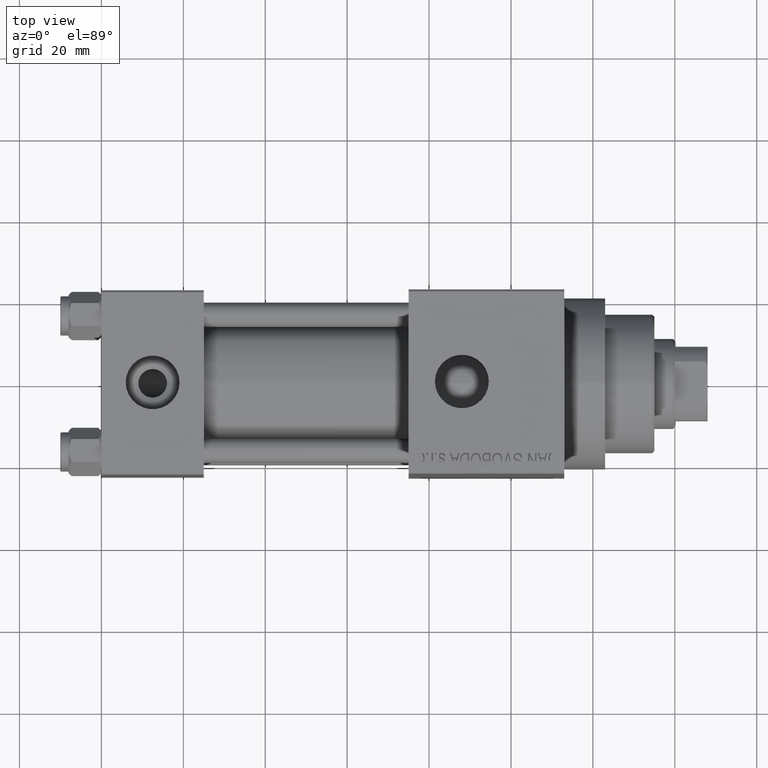
[diagram: clean part render]
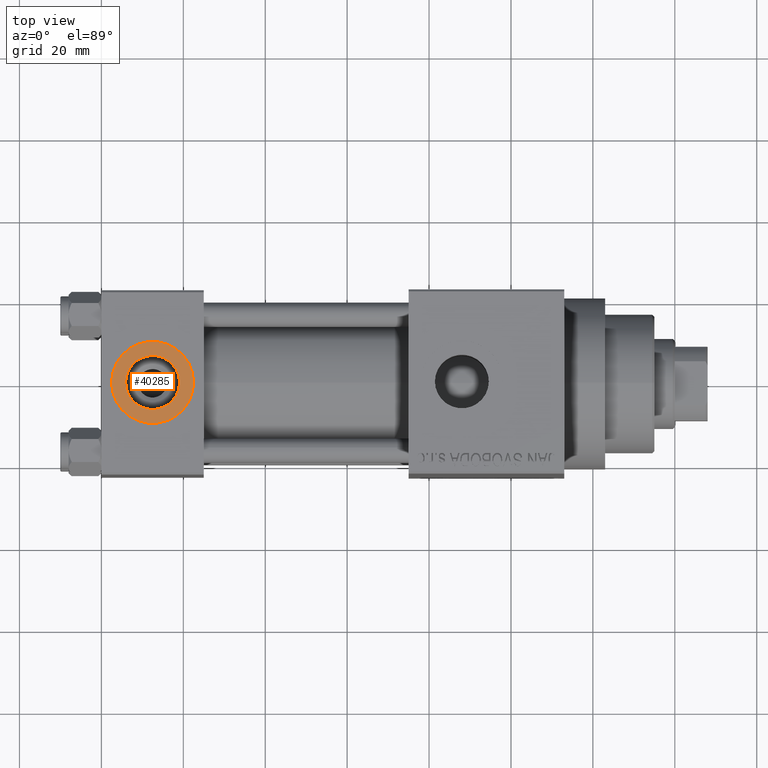
[diagram: same view with one face highlighted and labeled with its STEP entity id]
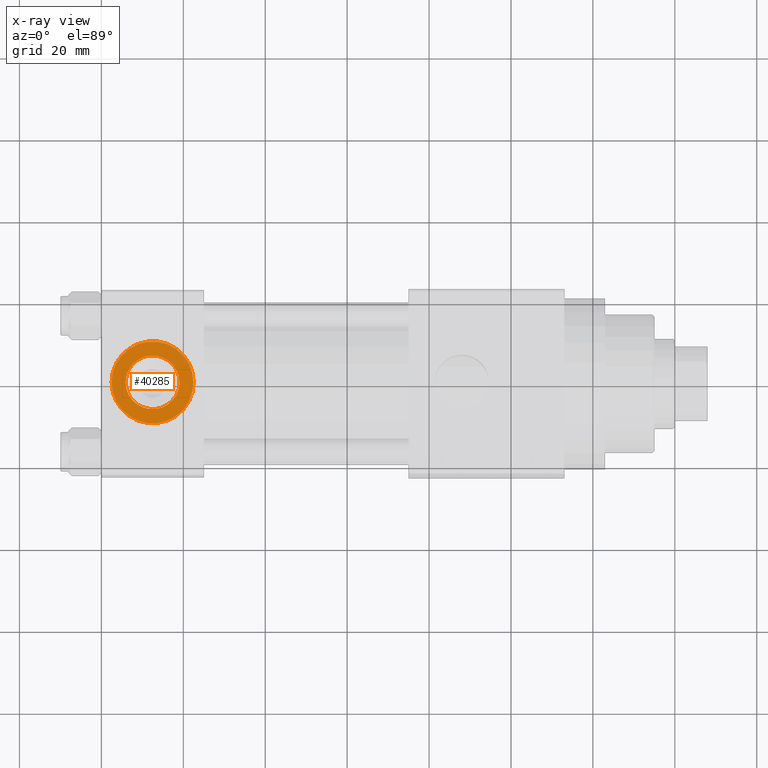
[diagram: x-ray of the same camera — body ghosted, the highlighted face saturated]
A machine part, top view. The second image highlights one B-rep face of the part: STEP entity #40285.
The next image is the same camera in x-ray: the body ghosted, the highlighted face saturated — about 0% of this face is hidden behind the body in this view.
In plain terms, the highlighted planar face has unit normal (0, 0, 1).
Its self-contained STEP definition (entity closure, byte-faithful):
#69 = CARTESIAN_POINT ( 'NONE',  ( 12.50000000000000000, -1.734723475976807094E-15, 22.30000000000000071 ) ) ;
#307 = AXIS2_PLACEMENT_3D ( 'NONE', #14742, #14052, #43171 ) ;
#3039 = DIRECTION ( 'NONE',  ( 1.000000000000000000, 0.000000000000000000, 0.000000000000000000 ) ) ;
#4204 = EDGE_CURVE ( 'NONE', #16653, #33208, #35362, .T. ) ;
#6408 = EDGE_CURVE ( 'NONE', #33208, #16653, #30695, .T. ) ;
#6685 = CARTESIAN_POINT ( 'NONE',  ( 5.920000000000002593, -9.289058821378490386E-16, 22.30000000000000071 ) ) ;
#7043 = CARTESIAN_POINT ( 'NONE',  ( 12.50000000000000000, -1.734723475976807094E-15, 22.30000000000000071 ) ) ;
#7850 = AXIS2_PLACEMENT_3D ( 'NONE', #17790, #35716, #3039 ) ;
#8886 = CARTESIAN_POINT ( 'NONE',  ( 22.50000000000000000, -1.734723475976807094E-15, 22.30000000000000071 ) ) ;
#9097 = ORIENTED_EDGE ( 'NONE', *, *, #35844, .T. ) ;
#11006 = AXIS2_PLACEMENT_3D ( 'NONE', #69, #21524, #43503 ) ;
#11388 = EDGE_LOOP ( 'NONE', ( #27694, #27226 ) ) ;
#14052 = DIRECTION ( 'NONE',  ( 0.000000000000000000, 0.000000000000000000, 1.000000000000000000 ) ) ;
#14742 = CARTESIAN_POINT ( 'NONE',  ( 12.50000000000000000, -1.734723475976807094E-15, 22.30000000000000071 ) ) ;
#16653 = VERTEX_POINT ( 'NONE', #46333 ) ;
#17790 = CARTESIAN_POINT ( 'NONE',  ( 12.50000000000000000, -1.734723475976807094E-15, 22.30000000000000071 ) ) ;
#21085 = CIRCLE ( 'NONE', #43964, 9.999999999999998224 ) ;
#21188 = DIRECTION ( 'NONE',  ( 0.000000000000000000, 0.000000000000000000, 1.000000000000000000 ) ) ;
#21524 = DIRECTION ( 'NONE',  ( 0.000000000000000000, 0.000000000000000000, 1.000000000000000000 ) ) ;
#22918 = VERTEX_POINT ( 'NONE', #8886 ) ;
#26394 = ORIENTED_EDGE ( 'NONE', *, *, #41058, .T. ) ;
#27226 = ORIENTED_EDGE ( 'NONE', *, *, #6408, .F. ) ;
#27694 = ORIENTED_EDGE ( 'NONE', *, *, #4204, .F. ) ;
#28281 = FACE_OUTER_BOUND ( 'NONE', #44110, .T. ) ;
#30075 = CIRCLE ( 'NONE', #11006, 9.999999999999998224 ) ;
#30695 = CIRCLE ( 'NONE', #7850, 6.579999999999999183 ) ;
#31222 = CARTESIAN_POINT ( 'NONE',  ( 12.50000000000000000, -1.734723475976807094E-15, 22.30000000000000071 ) ) ;
#31870 = FACE_BOUND ( 'NONE', #11388, .T. ) ;
#32566 = DIRECTION ( 'NONE',  ( 1.000000000000000000, 0.000000000000000000, -0.000000000000000000 ) ) ;
#33208 = VERTEX_POINT ( 'NONE', #6685 ) ;
#33983 = AXIS2_PLACEMENT_3D ( 'NONE', #7043, #36158, #32566 ) ;
#35362 = CIRCLE ( 'NONE', #307, 6.579999999999999183 ) ;
#35527 = DIRECTION ( 'NONE',  ( 1.000000000000000000, 0.000000000000000000, 0.000000000000000000 ) ) ;
#35716 = DIRECTION ( 'NONE',  ( 0.000000000000000000, 0.000000000000000000, 1.000000000000000000 ) ) ;
#35844 = EDGE_CURVE ( 'NONE', #22918, #44741, #30075, .T. ) ;
#36158 = DIRECTION ( 'NONE',  ( 0.000000000000000000, 0.000000000000000000, 1.000000000000000000 ) ) ;
#36256 = CARTESIAN_POINT ( 'NONE',  ( 2.500000000000003997, -5.100766768294543310E-16, 22.30000000000000071 ) ) ;
#40285 = ADVANCED_FACE ( 'NONE', ( #31870, #28281 ), #43091, .T. ) ;
#41058 = EDGE_CURVE ( 'NONE', #44741, #22918, #21085, .T. ) ;
#43091 = PLANE ( 'NONE',  #33983 ) ;
#43171 = DIRECTION ( 'NONE',  ( 1.000000000000000000, 0.000000000000000000, 0.000000000000000000 ) ) ;
#43503 = DIRECTION ( 'NONE',  ( 1.000000000000000000, 0.000000000000000000, 0.000000000000000000 ) ) ;
#43964 = AXIS2_PLACEMENT_3D ( 'NONE', #31222, #21188, #35527 ) ;
#44110 = EDGE_LOOP ( 'NONE', ( #9097, #26394 ) ) ;
#44741 = VERTEX_POINT ( 'NONE', #36256 ) ;
#46333 = CARTESIAN_POINT ( 'NONE',  ( 19.07999999999999829, -1.734723475976807094E-15, 22.30000000000000071 ) ) ;